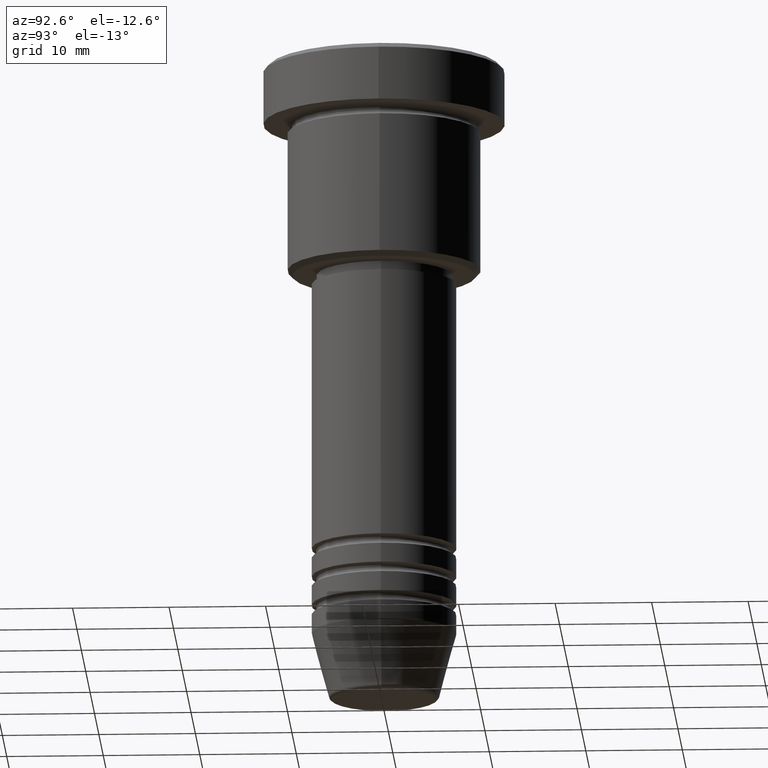
[diagram: clean part render]
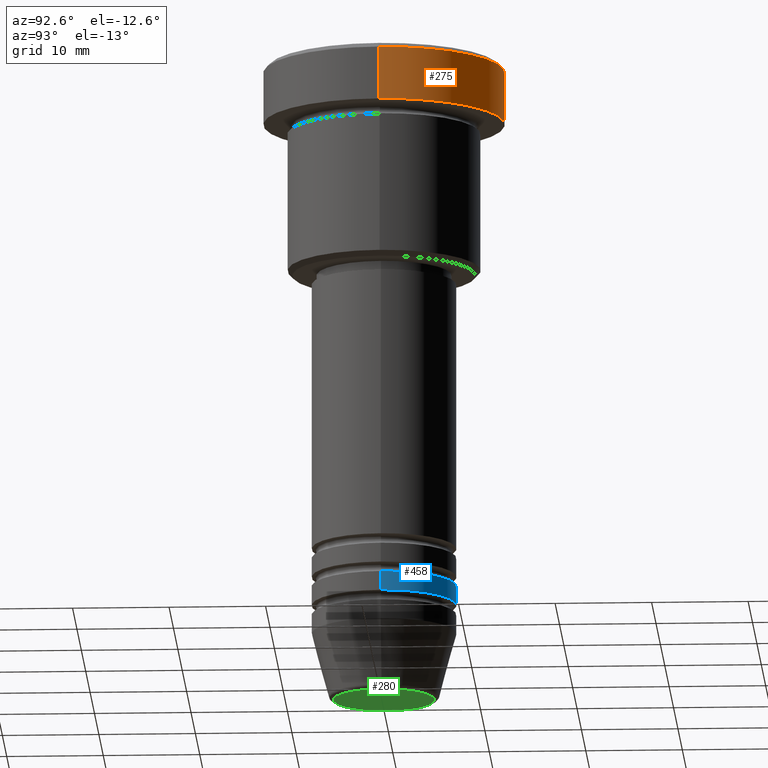
[diagram: same view with three faces highlighted in distinct colors, each labeled with its STEP entity id]
A machine part, auxiliary view with three faces highlighted in distinct colors.
Their STEP definitions:

[orange] entity #275 — the highlighted cylindrical surface (partial cylindrical patch) has radius 12.5 mm, axis along (-0, -0, 1).
#2 = DIRECTION ( 'NONE',  ( 1.000000000000000000, 0.000000000000000000, 0.000000000000000000 ) ) ;
#28 = CARTESIAN_POINT ( 'NONE',  ( 0.000000000000000000, 0.000000000000000000, -0.5000000000000056621 ) ) ;
#56 = CARTESIAN_POINT ( 'NONE',  ( 12.50000000000000000, 0.000000000000000000, -5.999999999999996447 ) ) ;
#66 = LINE ( 'NONE', #459, #588 ) ;
#112 = CARTESIAN_POINT ( 'NONE',  ( 0.000000000000000000, 0.000000000000000000, 0.000000000000000000 ) ) ;
#120 = CARTESIAN_POINT ( 'NONE',  ( 0.000000000000000000, 0.000000000000000000, -5.999999999999996447 ) ) ;
#130 = DIRECTION ( 'NONE',  ( 0.000000000000000000, 0.000000000000000000, -1.000000000000000000 ) ) ;
#144 = AXIS2_PLACEMENT_3D ( 'NONE', #112, #205, #2 ) ;
#151 = EDGE_CURVE ( 'NONE', #916, #1016, #66, .T. ) ;
#200 = AXIS2_PLACEMENT_3D ( 'NONE', #28, #130, #407 ) ;
#205 = DIRECTION ( 'NONE',  ( -0.000000000000000000, -0.000000000000000000, 1.000000000000000000 ) ) ;
#250 = CIRCLE ( 'NONE', #200, 12.50000000000000000 ) ;
#275 = ADVANCED_FACE ( 'NONE', ( #836 ), #829, .T. ) ;
#305 = ORIENTED_EDGE ( 'NONE', *, *, #802, .T. ) ;
#318 = ORIENTED_EDGE ( 'NONE', *, *, #417, .T. ) ;
#364 = ORIENTED_EDGE ( 'NONE', *, *, #151, .T. ) ;
#368 = EDGE_LOOP ( 'NONE', ( #305, #364, #318, #727 ) ) ;
#407 = DIRECTION ( 'NONE',  ( 1.000000000000000000, 0.000000000000000000, 0.000000000000000000 ) ) ;
#417 = EDGE_CURVE ( 'NONE', #1016, #526, #250, .T. ) ;
#453 = DIRECTION ( 'NONE',  ( -0.000000000000000000, -0.000000000000000000, 1.000000000000000000 ) ) ;
#459 = CARTESIAN_POINT ( 'NONE',  ( -12.50000000000000000, 1.530808498934191521E-15, 0.000000000000000000 ) ) ;
#461 = VERTEX_POINT ( 'NONE', #56 ) ;
#483 = DIRECTION ( 'NONE',  ( -0.000000000000000000, -0.000000000000000000, 1.000000000000000000 ) ) ;
#526 = VERTEX_POINT ( 'NONE', #1175 ) ;
#588 = VECTOR ( 'NONE', #453, 1000.000000000000000 ) ;
#613 = CIRCLE ( 'NONE', #812, 12.50000000000000000 ) ;
#635 = CARTESIAN_POINT ( 'NONE',  ( -12.50000000000000000, 1.530808498934191521E-15, -0.5000000000000056621 ) ) ;
#657 = EDGE_CURVE ( 'NONE', #461, #526, #915, .T. ) ;
#710 = CARTESIAN_POINT ( 'NONE',  ( -12.50000000000000000, 1.530808498934191521E-15, -5.999999999999996447 ) ) ;
#727 = ORIENTED_EDGE ( 'NONE', *, *, #657, .F. ) ;
#746 = CARTESIAN_POINT ( 'NONE',  ( 12.50000000000000000, 0.000000000000000000, 0.000000000000000000 ) ) ;
#802 = EDGE_CURVE ( 'NONE', #461, #916, #613, .T. ) ;
#812 = AXIS2_PLACEMENT_3D ( 'NONE', #120, #1126, #871 ) ;
#829 = CYLINDRICAL_SURFACE ( 'NONE', #144, 12.50000000000000000 ) ;
#836 = FACE_OUTER_BOUND ( 'NONE', #368, .T. ) ;
#871 = DIRECTION ( 'NONE',  ( 1.000000000000000000, 0.000000000000000000, 0.000000000000000000 ) ) ;
#915 = LINE ( 'NONE', #746, #1112 ) ;
#916 = VERTEX_POINT ( 'NONE', #710 ) ;
#1016 = VERTEX_POINT ( 'NONE', #635 ) ;
#1112 = VECTOR ( 'NONE', #483, 1000.000000000000000 ) ;
#1126 = DIRECTION ( 'NONE',  ( -0.000000000000000000, -0.000000000000000000, 1.000000000000000000 ) ) ;
#1175 = CARTESIAN_POINT ( 'NONE',  ( 12.50000000000000000, 0.000000000000000000, -0.5000000000000056621 ) ) ;

[blue] entity #458 — the highlighted cylindrical surface (partial cylindrical patch) has radius 7.5 mm, axis along (-0, -0, 1).
#17 = VERTEX_POINT ( 'NONE', #51 ) ;
#21 = AXIS2_PLACEMENT_3D ( 'NONE', #736, #271, #562 ) ;
#51 = CARTESIAN_POINT ( 'NONE',  ( -7.500000000000000000, 9.184850993605147944E-16, -54.99999999999997868 ) ) ;
#79 = FACE_OUTER_BOUND ( 'NONE', #400, .T. ) ;
#110 = ORIENTED_EDGE ( 'NONE', *, *, #603, .T. ) ;
#180 = CARTESIAN_POINT ( 'NONE',  ( 0.000000000000000000, 0.000000000000000000, 0.000000000000000000 ) ) ;
#271 = DIRECTION ( 'NONE',  ( -0.000000000000000000, -0.000000000000000000, 1.000000000000000000 ) ) ;
#296 = VECTOR ( 'NONE', #711, 1000.000000000000000 ) ;
#345 = CARTESIAN_POINT ( 'NONE',  ( 7.500000000000000000, 0.000000000000000000, -54.99999999999997868 ) ) ;
#356 = CYLINDRICAL_SURFACE ( 'NONE', #924, 7.500000000000000000 ) ;
#372 = ORIENTED_EDGE ( 'NONE', *, *, #1122, .T. ) ;
#400 = EDGE_LOOP ( 'NONE', ( #372, #110, #578, #894 ) ) ;
#443 = CARTESIAN_POINT ( 'NONE',  ( 7.500000000000000000, 0.000000000000000000, 0.000000000000000000 ) ) ;
#458 = ADVANCED_FACE ( 'NONE', ( #79 ), #356, .T. ) ;
#479 = CIRCLE ( 'NONE', #21, 7.500000000000000000 ) ;
#489 = VERTEX_POINT ( 'NONE', #729 ) ;
#507 = EDGE_CURVE ( 'NONE', #489, #602, #1095, .T. ) ;
#519 = CIRCLE ( 'NONE', #909, 7.500000000000000000 ) ;
#555 = VECTOR ( 'NONE', #980, 1000.000000000000000 ) ;
#562 = DIRECTION ( 'NONE',  ( 1.000000000000000000, 0.000000000000000000, 0.000000000000000000 ) ) ;
#578 = ORIENTED_EDGE ( 'NONE', *, *, #1071, .F. ) ;
#602 = VERTEX_POINT ( 'NONE', #345 ) ;
#603 = EDGE_CURVE ( 'NONE', #1029, #17, #1088, .T. ) ;
#622 = DIRECTION ( 'NONE',  ( 1.000000000000000000, 0.000000000000000000, 0.000000000000000000 ) ) ;
#634 = DIRECTION ( 'NONE',  ( -0.000000000000000000, -0.000000000000000000, 1.000000000000000000 ) ) ;
#711 = DIRECTION ( 'NONE',  ( -0.000000000000000000, -0.000000000000000000, 1.000000000000000000 ) ) ;
#729 = CARTESIAN_POINT ( 'NONE',  ( 7.500000000000000000, 0.000000000000000000, -56.99999999999997868 ) ) ;
#736 = CARTESIAN_POINT ( 'NONE',  ( 0.000000000000000000, 0.000000000000000000, -56.99999999999997868 ) ) ;
#739 = CARTESIAN_POINT ( 'NONE',  ( -7.500000000000000000, 9.184850993605147944E-16, 0.000000000000000000 ) ) ;
#894 = ORIENTED_EDGE ( 'NONE', *, *, #507, .F. ) ;
#896 = CARTESIAN_POINT ( 'NONE',  ( -7.500000000000000000, 9.184850993605147944E-16, -56.99999999999997868 ) ) ;
#906 = DIRECTION ( 'NONE',  ( -0.000000000000000000, -0.000000000000000000, 1.000000000000000000 ) ) ;
#909 = AXIS2_PLACEMENT_3D ( 'NONE', #983, #906, #622 ) ;
#924 = AXIS2_PLACEMENT_3D ( 'NONE', #180, #634, #1165 ) ;
#980 = DIRECTION ( 'NONE',  ( -0.000000000000000000, -0.000000000000000000, 1.000000000000000000 ) ) ;
#983 = CARTESIAN_POINT ( 'NONE',  ( 0.000000000000000000, 0.000000000000000000, -54.99999999999997868 ) ) ;
#1029 = VERTEX_POINT ( 'NONE', #896 ) ;
#1071 = EDGE_CURVE ( 'NONE', #602, #17, #519, .T. ) ;
#1088 = LINE ( 'NONE', #739, #296 ) ;
#1095 = LINE ( 'NONE', #443, #555 ) ;
#1122 = EDGE_CURVE ( 'NONE', #489, #1029, #479, .T. ) ;
#1165 = DIRECTION ( 'NONE',  ( 1.000000000000000000, 0.000000000000000000, 0.000000000000000000 ) ) ;

[green] entity #280 — the highlighted planar face has unit normal (0, -0, 1).
#22 = EDGE_CURVE ( 'NONE', #940, #290, #444, .T. ) ;
#103 = FACE_OUTER_BOUND ( 'NONE', #351, .T. ) ;
#216 = CARTESIAN_POINT ( 'NONE',  ( 0.000000000000000000, 0.000000000000000000, -67.00000000000000000 ) ) ;
#280 = ADVANCED_FACE ( 'NONE', ( #103 ), #382, .F. ) ;
#290 = VERTEX_POINT ( 'NONE', #847 ) ;
#297 = DIRECTION ( 'NONE',  ( 0.000000000000000000, 0.000000000000000000, -1.000000000000000000 ) ) ;
#339 = CARTESIAN_POINT ( 'NONE',  ( 0.000000000000000000, 0.000000000000000000, -67.00000000000000000 ) ) ;
#351 = EDGE_LOOP ( 'NONE', ( #775, #782 ) ) ;
#379 = AXIS2_PLACEMENT_3D ( 'NONE', #945, #297, #673 ) ;
#382 = PLANE ( 'NONE',  #990 ) ;
#444 = CIRCLE ( 'NONE', #546, 5.240692158992654726 ) ;
#521 = DIRECTION ( 'NONE',  ( 0.000000000000000000, 0.000000000000000000, -1.000000000000000000 ) ) ;
#546 = AXIS2_PLACEMENT_3D ( 'NONE', #339, #521, #967 ) ;
#673 = DIRECTION ( 'NONE',  ( 1.000000000000000000, 0.000000000000000000, 0.000000000000000000 ) ) ;
#760 = DIRECTION ( 'NONE',  ( 0.000000000000000000, -0.000000000000000000, 1.000000000000000000 ) ) ;
#775 = ORIENTED_EDGE ( 'NONE', *, *, #22, .T. ) ;
#782 = ORIENTED_EDGE ( 'NONE', *, *, #1144, .T. ) ;
#847 = CARTESIAN_POINT ( 'NONE',  ( -5.240692158992654726, 6.713726370671654515E-16, -67.00000000000000000 ) ) ;
#851 = CIRCLE ( 'NONE', #379, 5.240692158992654726 ) ;
#940 = VERTEX_POINT ( 'NONE', #977 ) ;
#945 = CARTESIAN_POINT ( 'NONE',  ( 0.000000000000000000, 0.000000000000000000, -67.00000000000000000 ) ) ;
#967 = DIRECTION ( 'NONE',  ( 1.000000000000000000, 0.000000000000000000, 0.000000000000000000 ) ) ;
#977 = CARTESIAN_POINT ( 'NONE',  ( 5.240692158992654726, 0.000000000000000000, -67.00000000000000000 ) ) ;
#990 = AXIS2_PLACEMENT_3D ( 'NONE', #216, #760, #1125 ) ;
#1125 = DIRECTION ( 'NONE',  ( 1.000000000000000000, 0.000000000000000000, 0.000000000000000000 ) ) ;
#1144 = EDGE_CURVE ( 'NONE', #290, #940, #851, .T. ) ;